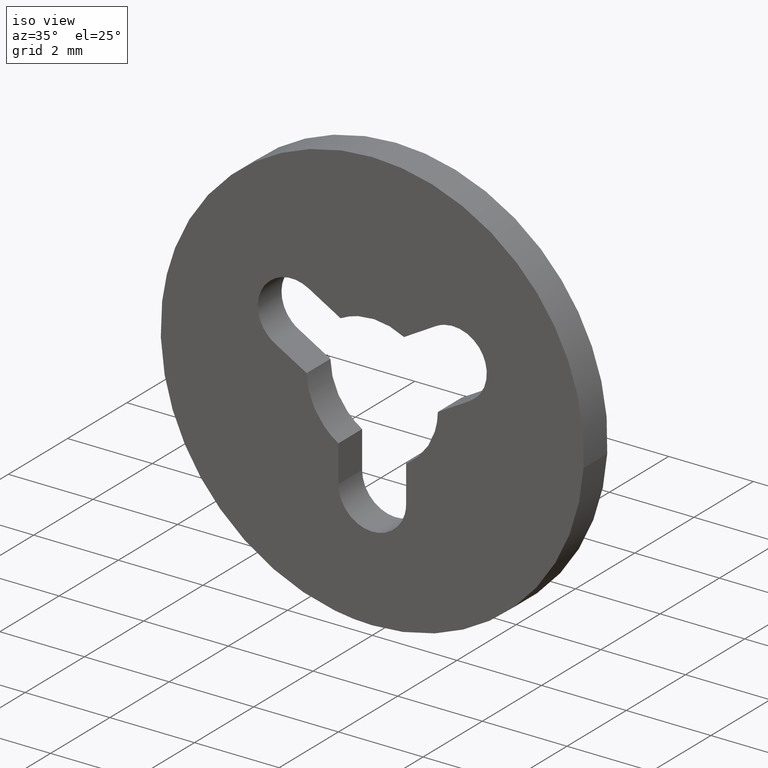
[diagram: clean part render]
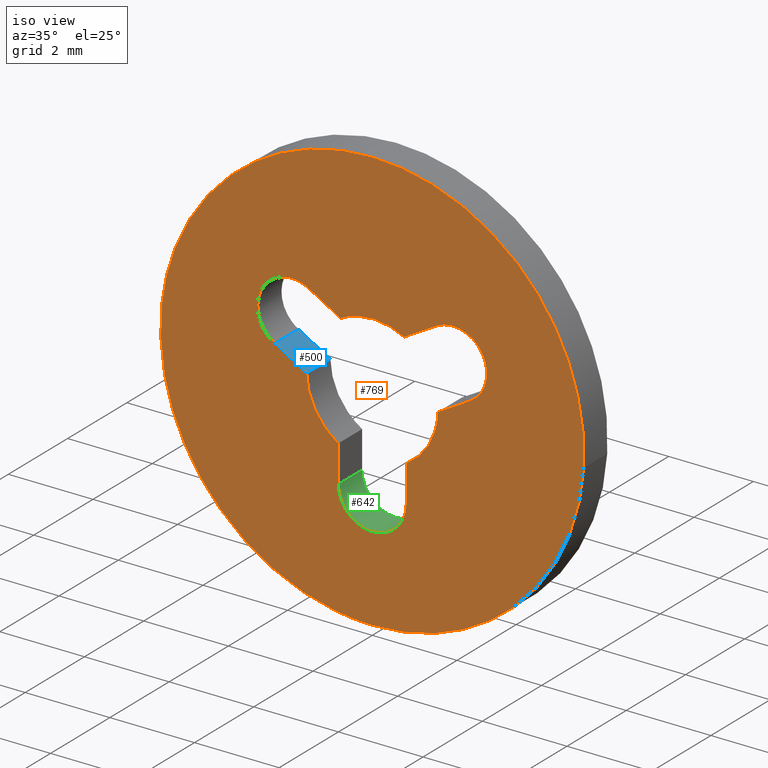
[diagram: same view with three faces highlighted in distinct colors, each labeled with its STEP entity id]
A machine part, iso view with three faces highlighted in distinct colors.
Their STEP definitions:

[orange] entity #769 — the highlighted face is a freeform B-spline surface patch.
#66=CARTESIAN_POINT('',(-4.965048007634929,3.045997E-014,0.590168011561354));
#67=VERTEX_POINT('',#66);
#68=CARTESIAN_POINT('',(0.0,0.0,-5.0));
#69=VERTEX_POINT('',#68);
#70=CARTESIAN_POINT('',(-4.965048007634929,3.045997E-014,0.590168011561354));
#71=CARTESIAN_POINT('',(-5.000000000000001,0.0,0.296119000685819));
#72=CARTESIAN_POINT('',(-5.0,0.0,0.0));
#73=CARTESIAN_POINT('',(-5.000000000000001,0.0,-5.000000000000001));
#74=CARTESIAN_POINT('',(0.0,0.0,-5.0));
#82=(BOUNDED_CURVE()B_SPLINE_CURVE(2,(#70,#71,#72,#73,#74),.UNSPECIFIED.,.F.,.U.)B_SPLINE_CURVE_WITH_KNOTS((3,2,3),(0.229562581136241,0.250000000000000,0.500000000000000),.UNSPECIFIED.)CURVE()GEOMETRIC_REPRESENTATION_ITEM()RATIONAL_B_SPLINE_CURVE((0.956026965128767,0.976056074419019,1.0,0.707106781186548,1.0))REPRESENTATION_ITEM(''));
#83=EDGE_CURVE('',#67,#69,#82,.T.);
#124=CARTESIAN_POINT('',(4.990674101339240,2.014708E-014,-0.305240911770624));
#125=VERTEX_POINT('',#124);
#131=CARTESIAN_POINT('',(0.0,0.0,-5.0));
#132=CARTESIAN_POINT('',(4.703532020823824,0.0,-4.999999999999999));
#133=CARTESIAN_POINT('',(4.990674101339240,2.014708E-014,-0.305240911770624));
#141=(BOUNDED_CURVE()B_SPLINE_CURVE(2,(#131,#132,#133),.UNSPECIFIED.,.F.,.U.)B_SPLINE_CURVE_WITH_KNOTS((3,3),(0.500000000000000,0.739333023987528),.UNSPECIFIED.)CURVE()GEOMETRIC_REPRESENTATION_ITEM()RATIONAL_B_SPLINE_CURVE((1.0,0.719603920943743,0.976072174005725))REPRESENTATION_ITEM(''));
#142=EDGE_CURVE('',#69,#125,#141,.T.);
#165=CARTESIAN_POINT('',(0.0,0.0,5.0));
#166=VERTEX_POINT('',#165);
#167=CARTESIAN_POINT('',(0.0,0.0,5.0));
#168=CARTESIAN_POINT('',(-4.440875477595059,0.0,5.000000000000001));
#169=CARTESIAN_POINT('',(-4.965048007634929,3.045997E-014,0.590168011561354));
#177=(BOUNDED_CURVE()B_SPLINE_CURVE(2,(#167,#168,#169),.UNSPECIFIED.,.F.,.U.)B_SPLINE_CURVE_WITH_KNOTS((3,3),(0.0,0.229562581136241),.UNSPECIFIED.)CURVE()GEOMETRIC_REPRESENTATION_ITEM()RATIONAL_B_SPLINE_CURVE((1.0,0.731050706767529,0.956026965128767))REPRESENTATION_ITEM(''));
#178=EDGE_CURVE('',#166,#67,#177,.T.);
#180=CARTESIAN_POINT('',(4.990674101339240,2.014708E-014,-0.305240911770624));
#181=CARTESIAN_POINT('',(5.000000000000001,0.0,-0.152762921037389));
#182=CARTESIAN_POINT('',(5.0,0.0,0.0));
#183=CARTESIAN_POINT('',(5.000000000000001,0.0,5.000000000000001));
#184=CARTESIAN_POINT('',(0.0,0.0,5.0));
#192=(BOUNDED_CURVE()B_SPLINE_CURVE(2,(#180,#181,#182,#183,#184),.UNSPECIFIED.,.F.,.U.)B_SPLINE_CURVE_WITH_KNOTS((3,2,3),(0.739333023987528,0.750000000000000,1.0),.UNSPECIFIED.)CURVE()GEOMETRIC_REPRESENTATION_ITEM()RATIONAL_B_SPLINE_CURVE((0.976072174005725,0.987502860242804,1.0,0.707106781186548,1.0))REPRESENTATION_ITEM(''));
#193=EDGE_CURVE('',#125,#166,#192,.T.);
#248=CARTESIAN_POINT('',(2.309794983558780,0.0,0.409852987198331));
#249=VERTEX_POINT('',#248);
#250=CARTESIAN_POINT('',(1.505200000000000,0.0,1.792900000000000));
#251=VERTEX_POINT('',#250);
#252=CARTESIAN_POINT('',(2.309794983558779,0.0,0.409852987198332));
#253=CARTESIAN_POINT('',(2.997732561522572,0.0,0.813095514915834));
#254=CARTESIAN_POINT('',(2.596752573461200,0.0,1.502354317187515));
#255=CARTESIAN_POINT('',(2.195772585399829,0.0,2.191613119459197));
#256=CARTESIAN_POINT('',(1.505200000000001,0.0,1.792899999999999));
#264=(BOUNDED_CURVE()B_SPLINE_CURVE(2,(#252,#253,#254,#255,#256),.UNSPECIFIED.,.F.,.U.)B_SPLINE_CURVE_WITH_KNOTS((3,2,3),(0.0,0.500000000000000,1.0),.UNSPECIFIED.)CURVE()GEOMETRIC_REPRESENTATION_ITEM()RATIONAL_B_SPLINE_CURVE((1.0,0.708267502221114,1.0,0.708267502221114,1.0))REPRESENTATION_ITEM(''));
#265=EDGE_CURVE('',#249,#251,#264,.T.);
#304=CARTESIAN_POINT('',(0.749639666225095,0.0,1.356665165330756));
#305=VERTEX_POINT('',#304);
#306=CARTESIAN_POINT('',(0.749639666225095,0.0,1.356665165330756));
#307=CARTESIAN_POINT('',(1.505200000000000,0.0,1.792900000000000));
#308=QUASI_UNIFORM_CURVE('',1,(#306,#307),.UNSPECIFIED.,.F.,.U.);
#309=EDGE_CURVE('',#305,#251,#308,.T.);
#341=CARTESIAN_POINT('',(-0.749690762769801,0.0,1.356636930139244));
#342=VERTEX_POINT('',#341);
#343=CARTESIAN_POINT('',(0.749639666225096,0.0,1.356665165330756));
#344=CARTESIAN_POINT('',(-0.000033349446036,0.0,1.770904908199554));
#345=CARTESIAN_POINT('',(-0.749690762769801,0.0,1.356636930139245));
#353=(BOUNDED_CURVE()B_SPLINE_CURVE(2,(#343,#344,#345),.UNSPECIFIED.,.F.,.U.)CURVE()GEOMETRIC_REPRESENTATION_ITEM()QUASI_UNIFORM_CURVE()RATIONAL_B_SPLINE_CURVE((1.0,0.875258740629394,1.0))REPRESENTATION_ITEM(''));
#354=EDGE_CURVE('',#305,#342,#353,.T.);
#385=CARTESIAN_POINT('',(-1.505300000000000,0.0,1.792900000000000));
#386=VERTEX_POINT('',#385);
#387=CARTESIAN_POINT('',(-1.505300000000000,0.0,1.792900000000000));
#388=CARTESIAN_POINT('',(-0.749690762769801,0.0,1.356636930139244));
#389=QUASI_UNIFORM_CURVE('',1,(#387,#388),.UNSPECIFIED.,.F.,.U.);
#390=EDGE_CURVE('',#386,#342,#389,.T.);
#426=CARTESIAN_POINT('',(-2.300703745775685,0.0,0.404546279162633));
#427=VERTEX_POINT('',#426);
#428=CARTESIAN_POINT('',(-1.505300000000000,0.0,1.792900000000000));
#429=CARTESIAN_POINT('',(-1.906346013160948,0.0,2.024450325533841));
#430=CARTESIAN_POINT('',(-2.306879795074811,0.0,1.792015071166313));
#431=CARTESIAN_POINT('',(-2.707413576988674,0.0,1.559579816798786));
#432=CARTESIAN_POINT('',(-2.705352236400295,0.0,1.096493206322843));
#433=CARTESIAN_POINT('',(-2.703290895811918,0.0,0.633406595846900));
#434=CARTESIAN_POINT('',(-2.300703745775686,0.0,0.404546279162634));
#442=(BOUNDED_CURVE()B_SPLINE_CURVE(2,(#428,#429,#430,#431,#432,#433,#434),.UNSPECIFIED.,.F.,.U.)B_SPLINE_CURVE_WITH_KNOTS((3,2,2,3),(0.0,0.333333333333333,0.666666666666667,1.0),.UNSPECIFIED.)CURVE()GEOMETRIC_REPRESENTATION_ITEM()RATIONAL_B_SPLINE_CURVE((1.0,0.865466982010348,1.0,0.865466982010348,1.0,0.865466982010348,1.0))REPRESENTATION_ITEM(''));
#443=EDGE_CURVE('',#386,#427,#442,.T.);
#478=CARTESIAN_POINT('',(-1.549727906457970,0.0,-0.029041624358724));
#479=VERTEX_POINT('',#478);
#480=CARTESIAN_POINT('',(-1.549727906457970,0.0,-0.029041624358724));
#481=CARTESIAN_POINT('',(-2.300703745775685,0.0,0.404546279162633));
#482=QUASI_UNIFORM_CURVE('',1,(#480,#481),.UNSPECIFIED.,.F.,.U.);
#483=EDGE_CURVE('',#479,#427,#482,.T.);
#515=CARTESIAN_POINT('',(-0.799999999999990,0.0,-1.327591804735182));
#516=VERTEX_POINT('',#515);
#517=CARTESIAN_POINT('',(-1.549727906457971,0.0,-0.029041624358724));
#518=CARTESIAN_POINT('',(-1.533678385811006,0.0,-0.885480979287683));
#519=CARTESIAN_POINT('',(-0.799999999999990,0.0,-1.327591804735181));
#527=(BOUNDED_CURVE()B_SPLINE_CURVE(2,(#517,#518,#519),.UNSPECIFIED.,.F.,.U.)CURVE()GEOMETRIC_REPRESENTATION_ITEM()QUASI_UNIFORM_CURVE()RATIONAL_B_SPLINE_CURVE((1.0,0.875238959213732,1.0))REPRESENTATION_ITEM(''));
#528=EDGE_CURVE('',#479,#516,#527,.T.);
#559=CARTESIAN_POINT('',(-0.800000000000000,0.0,-2.200000000000000));
#560=VERTEX_POINT('',#559);
#561=CARTESIAN_POINT('',(-0.800000000000000,0.0,-2.200000000000000));
#562=CARTESIAN_POINT('',(-0.799999999999990,0.0,-1.327591804735182));
#563=QUASI_UNIFORM_CURVE('',1,(#561,#562),.UNSPECIFIED.,.F.,.U.);
#564=EDGE_CURVE('',#560,#516,#563,.T.);
#600=CARTESIAN_POINT('',(0.800000000000000,0.0,-2.200000000000000));
#601=VERTEX_POINT('',#600);
#602=CARTESIAN_POINT('',(-0.800000000000000,0.0,-2.200000000000000));
#603=CARTESIAN_POINT('',(-0.800000000000000,0.0,-3.0));
#604=CARTESIAN_POINT('',(0.0,0.0,-3.0));
#605=CARTESIAN_POINT('',(0.800000000000000,0.0,-3.0));
#606=CARTESIAN_POINT('',(0.800000000000000,0.0,-2.200000000000000));
#614=(BOUNDED_CURVE()B_SPLINE_CURVE(2,(#602,#603,#604,#605,#606),.UNSPECIFIED.,.F.,.U.)B_SPLINE_CURVE_WITH_KNOTS((3,2,3),(0.0,0.500000000000000,1.0),.UNSPECIFIED.)CURVE()GEOMETRIC_REPRESENTATION_ITEM()RATIONAL_B_SPLINE_CURVE((1.0,0.707106781186548,1.0,0.707106781186548,1.0))REPRESENTATION_ITEM(''));
#615=EDGE_CURVE('',#560,#601,#614,.T.);
#648=CARTESIAN_POINT('',(0.800000000000000,0.0,-1.327591804735178));
#649=VERTEX_POINT('',#648);
#650=CARTESIAN_POINT('',(0.800000000000000,0.0,-1.327591804735178));
#651=CARTESIAN_POINT('',(0.800000000000000,0.0,-2.200000000000000));
#652=QUASI_UNIFORM_CURVE('',1,(#650,#651),.UNSPECIFIED.,.F.,.U.);
#653=EDGE_CURVE('',#649,#601,#652,.T.);
#685=CARTESIAN_POINT('',(1.549728999154675,0.0,-0.028983256874563));
#686=VERTEX_POINT('',#685);
#687=CARTESIAN_POINT('',(0.799999999999998,0.0,-1.327591804735176));
#688=CARTESIAN_POINT('',(1.533711022130222,0.0,-0.885461312809412));
#689=CARTESIAN_POINT('',(1.549728999154673,0.0,-0.028983256874563));
#697=(BOUNDED_CURVE()B_SPLINE_CURVE(2,(#687,#688,#689),.UNSPECIFIED.,.F.,.U.)CURVE()GEOMETRIC_REPRESENTATION_ITEM()QUASI_UNIFORM_CURVE()RATIONAL_B_SPLINE_CURVE((1.0,0.875229850426156,1.0))REPRESENTATION_ITEM(''));
#698=EDGE_CURVE('',#649,#686,#697,.T.);
#729=CARTESIAN_POINT('',(2.309794983558780,0.0,0.409852987198331));
#730=CARTESIAN_POINT('',(1.549728999154675,0.0,-0.028983256874563));
#731=QUASI_UNIFORM_CURVE('',1,(#729,#730),.UNSPECIFIED.,.F.,.U.);
#732=EDGE_CURVE('',#249,#686,#731,.T.);
#744=CARTESIAN_POINT('',(-5.499409322677550,0.0,5.499499980618060));
#745=CARTESIAN_POINT('',(5.499378298459945,0.0,5.499499980618060));
#746=CARTESIAN_POINT('',(-5.499409322677550,0.0,-5.499500248838961));
#747=CARTESIAN_POINT('',(5.499378298459945,0.0,-5.499500248838961));
#748=B_SPLINE_SURFACE_WITH_KNOTS('',1,1,((#744,#746),(#745,#747)),.UNSPECIFIED.,.F.,.F.,.U.,(2,2),(2,2),(0.0,10.998787621137501),(0.0,10.999000229457019),.UNSPECIFIED.);
#749=ORIENTED_EDGE('',*,*,#178,.T.);
#750=ORIENTED_EDGE('',*,*,#83,.T.);
#751=ORIENTED_EDGE('',*,*,#142,.T.);
#752=ORIENTED_EDGE('',*,*,#193,.T.);
#753=EDGE_LOOP('',(#749,#750,#751,#752));
#754=FACE_OUTER_BOUND('',#753,.T.);
#755=ORIENTED_EDGE('',*,*,#265,.F.);
#756=ORIENTED_EDGE('',*,*,#732,.T.);
#757=ORIENTED_EDGE('',*,*,#698,.F.);
#758=ORIENTED_EDGE('',*,*,#653,.T.);
#759=ORIENTED_EDGE('',*,*,#615,.F.);
#760=ORIENTED_EDGE('',*,*,#564,.T.);
#761=ORIENTED_EDGE('',*,*,#528,.F.);
#762=ORIENTED_EDGE('',*,*,#483,.T.);
#763=ORIENTED_EDGE('',*,*,#443,.F.);
#764=ORIENTED_EDGE('',*,*,#390,.T.);
#765=ORIENTED_EDGE('',*,*,#354,.F.);
#766=ORIENTED_EDGE('',*,*,#309,.T.);
#767=EDGE_LOOP('',(#755,#756,#757,#758,#759,#760,#761,#762,#763,#764,#765,#766));
#768=FACE_BOUND('',#767,.T.);
#769=ADVANCED_FACE('',(#754,#768),#748,.F.);

[blue] entity #500 — the highlighted face is a freeform B-spline surface patch.
#426=CARTESIAN_POINT('',(-2.300703745775685,0.0,0.404546279162633));
#427=VERTEX_POINT('',#426);
#445=CARTESIAN_POINT('',(-2.300703745775685,0.800000000000023,0.404546279162633));
#446=VERTEX_POINT('',#445);
#447=CARTESIAN_POINT('',(-2.300703745775685,0.800000000000023,0.404546279162633));
#448=CARTESIAN_POINT('',(-2.300703745775685,0.0,0.404546279162633));
#449=QUASI_UNIFORM_CURVE('',1,(#447,#448),.UNSPECIFIED.,.F.,.U.);
#450=EDGE_CURVE('',#446,#427,#449,.T.);
#473=CARTESIAN_POINT('',(-2.338215008642938,-0.039959998449446,0.426204006313788));
#474=CARTESIAN_POINT('',(-1.512216643590716,-0.039959998449446,-0.050699351509877));
#475=CARTESIAN_POINT('',(-2.338215008642938,0.839960019907141,0.426204006313788));
#476=CARTESIAN_POINT('',(-1.512216643590716,0.839960019907141,-0.050699351509877));
#477=B_SPLINE_SURFACE_WITH_KNOTS('',1,1,((#473,#475),(#474,#476)),.UNSPECIFIED.,.F.,.F.,.U.,(2,2),(2,2),(0.041708311480284,0.958291688519716),(0.041708334948495,0.958291687403247),.UNSPECIFIED.);
#478=CARTESIAN_POINT('',(-1.549727906457970,0.0,-0.029041624358724));
#479=VERTEX_POINT('',#478);
#480=CARTESIAN_POINT('',(-1.549727906457970,0.0,-0.029041624358724));
#481=CARTESIAN_POINT('',(-2.300703745775685,0.0,0.404546279162633));
#482=QUASI_UNIFORM_CURVE('',1,(#480,#481),.UNSPECIFIED.,.F.,.U.);
#483=EDGE_CURVE('',#479,#427,#482,.T.);
#484=ORIENTED_EDGE('',*,*,#483,.F.);
#485=CARTESIAN_POINT('',(-1.549727906457970,0.800000000000023,-0.029041624358724));
#486=VERTEX_POINT('',#485);
#487=CARTESIAN_POINT('',(-1.549727906457970,0.800000000000023,-0.029041624358724));
#488=CARTESIAN_POINT('',(-1.549727906457970,0.0,-0.029041624358724));
#489=QUASI_UNIFORM_CURVE('',1,(#487,#488),.UNSPECIFIED.,.F.,.U.);
#490=EDGE_CURVE('',#486,#479,#489,.T.);
#491=ORIENTED_EDGE('',*,*,#490,.F.);
#492=CARTESIAN_POINT('',(-1.549727906457970,0.800000000000023,-0.029041624358724));
#493=CARTESIAN_POINT('',(-2.300703745775685,0.800000000000023,0.404546279162633));
#494=QUASI_UNIFORM_CURVE('',1,(#492,#493),.UNSPECIFIED.,.F.,.U.);
#495=EDGE_CURVE('',#486,#446,#494,.T.);
#496=ORIENTED_EDGE('',*,*,#495,.T.);
#497=ORIENTED_EDGE('',*,*,#450,.T.);
#498=EDGE_LOOP('',(#484,#491,#496,#497));
#499=FACE_OUTER_BOUND('',#498,.T.);
#500=ADVANCED_FACE('',(#499),#477,.T.);

[green] entity #642 — the highlighted face is a freeform B-spline surface patch.
#559=CARTESIAN_POINT('',(-0.800000000000000,0.0,-2.200000000000000));
#560=VERTEX_POINT('',#559);
#566=CARTESIAN_POINT('',(-0.800000000000000,0.800000000000023,-2.200000000000000));
#567=VERTEX_POINT('',#566);
#568=CARTESIAN_POINT('',(-0.800000000000000,0.800000000000023,-2.200000000000000));
#569=CARTESIAN_POINT('',(-0.800000000000000,0.0,-2.200000000000000));
#570=QUASI_UNIFORM_CURVE('',1,(#568,#569),.UNSPECIFIED.,.F.,.U.);
#571=EDGE_CURVE('',#567,#560,#570,.T.);
#582=CARTESIAN_POINT('',(0.799725859980446,0.820000000000024,-2.179058441353701));
#583=CARTESIAN_POINT('',(0.799725859980446,-0.020500000000001,-2.179058441353701));
#584=CARTESIAN_POINT('',(0.821793658274322,0.820000000000024,-3.021793658274320));
#585=CARTESIAN_POINT('',(0.821793658274322,-0.020500000000001,-3.021793658274320));
#586=CARTESIAN_POINT('',(-0.020941558646297,0.820000000000024,-2.999725859980446));
#587=CARTESIAN_POINT('',(-0.020941558646297,-0.020500000000001,-2.999725859980446));
#588=CARTESIAN_POINT('',(-0.863676775566916,0.820000000000024,-2.977658061686572));
#589=CARTESIAN_POINT('',(-0.863676775566916,-0.020500000000001,-2.977658061686572));
#590=CARTESIAN_POINT('',(-0.797533866986502,0.820000000000024,-2.137232723417725));
#591=CARTESIAN_POINT('',(-0.797533866986502,-0.020500000000001,-2.137232723417725));
#599=(BOUNDED_SURFACE()B_SPLINE_SURFACE(1,2,((#582,#584,#586,#588,#590),(#583,#585,#587,#589,#591)),.UNSPECIFIED.,.F.,.F.,.U.)B_SPLINE_SURFACE_WITH_KNOTS((2,2),(3,2,3),(0.0,1.0),(0.0,1.0,2.0),.UNSPECIFIED.)GEOMETRIC_REPRESENTATION_ITEM()RATIONAL_B_SPLINE_SURFACE(((1.0,0.688354575693754,1.0,0.688354575693754,1.0),(1.0,0.688354575693754,1.0,0.688354575693754,1.0)))REPRESENTATION_ITEM('')SURFACE());
#600=CARTESIAN_POINT('',(0.800000000000000,0.0,-2.200000000000000));
#601=VERTEX_POINT('',#600);
#602=CARTESIAN_POINT('',(-0.800000000000000,0.0,-2.200000000000000));
#603=CARTESIAN_POINT('',(-0.800000000000000,0.0,-3.0));
#604=CARTESIAN_POINT('',(0.0,0.0,-3.0));
#605=CARTESIAN_POINT('',(0.800000000000000,0.0,-3.0));
#606=CARTESIAN_POINT('',(0.800000000000000,0.0,-2.200000000000000));
#614=(BOUNDED_CURVE()B_SPLINE_CURVE(2,(#602,#603,#604,#605,#606),.UNSPECIFIED.,.F.,.U.)B_SPLINE_CURVE_WITH_KNOTS((3,2,3),(0.0,0.500000000000000,1.0),.UNSPECIFIED.)CURVE()GEOMETRIC_REPRESENTATION_ITEM()RATIONAL_B_SPLINE_CURVE((1.0,0.707106781186548,1.0,0.707106781186548,1.0))REPRESENTATION_ITEM(''));
#615=EDGE_CURVE('',#560,#601,#614,.T.);
#616=ORIENTED_EDGE('',*,*,#615,.T.);
#617=CARTESIAN_POINT('',(0.800000000000000,0.800000000000023,-2.200000000000000));
#618=VERTEX_POINT('',#617);
#619=CARTESIAN_POINT('',(0.800000000000000,0.800000000000023,-2.200000000000000));
#620=CARTESIAN_POINT('',(0.800000000000000,0.0,-2.200000000000000));
#621=QUASI_UNIFORM_CURVE('',1,(#619,#620),.UNSPECIFIED.,.F.,.U.);
#622=EDGE_CURVE('',#618,#601,#621,.T.);
#623=ORIENTED_EDGE('',*,*,#622,.F.);
#624=CARTESIAN_POINT('',(-0.800000000000000,0.800000000000023,-2.200000000000000));
#625=CARTESIAN_POINT('',(-0.800000000000000,0.800000000000023,-3.0));
#626=CARTESIAN_POINT('',(0.0,0.800000000000023,-3.0));
#627=CARTESIAN_POINT('',(0.800000000000000,0.800000000000023,-3.0));
#628=CARTESIAN_POINT('',(0.800000000000000,0.800000000000023,-2.200000000000000));
#636=(BOUNDED_CURVE()B_SPLINE_CURVE(2,(#624,#625,#626,#627,#628),.UNSPECIFIED.,.F.,.U.)B_SPLINE_CURVE_WITH_KNOTS((3,2,3),(0.0,0.500000000000000,1.0),.UNSPECIFIED.)CURVE()GEOMETRIC_REPRESENTATION_ITEM()RATIONAL_B_SPLINE_CURVE((1.0,0.707106781186548,1.0,0.707106781186548,1.0))REPRESENTATION_ITEM(''));
#637=EDGE_CURVE('',#567,#618,#636,.T.);
#638=ORIENTED_EDGE('',*,*,#637,.F.);
#639=ORIENTED_EDGE('',*,*,#571,.T.);
#640=EDGE_LOOP('',(#616,#623,#638,#639));
#641=FACE_OUTER_BOUND('',#640,.T.);
#642=ADVANCED_FACE('',(#641),#599,.F.);